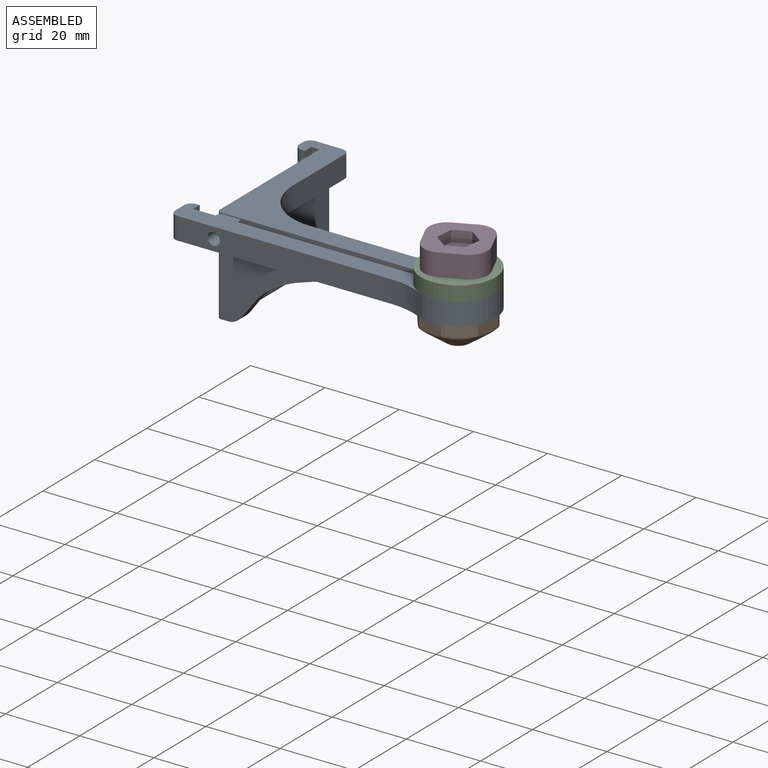
[diagram: assembled view]
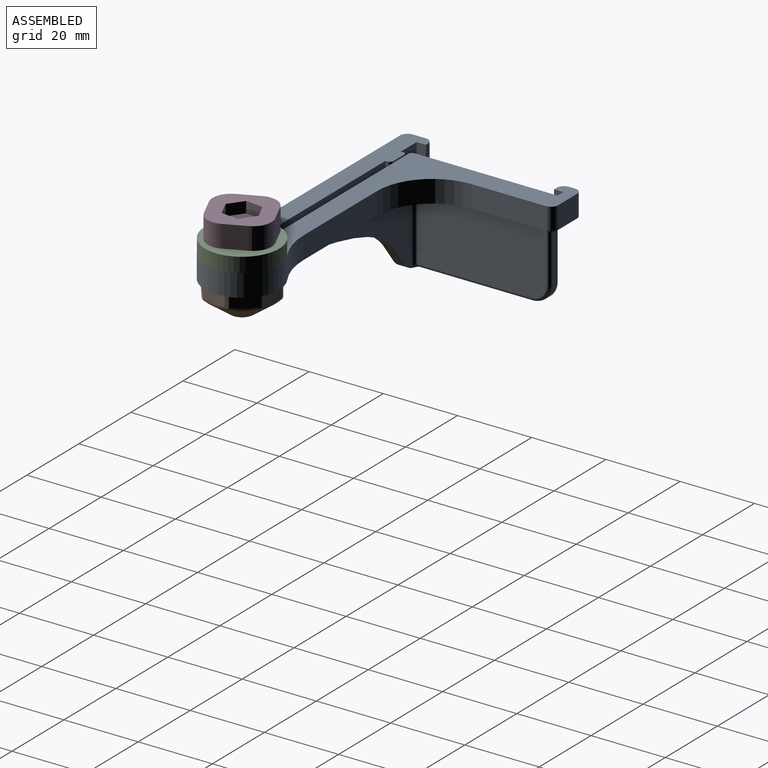
[diagram: assembled view, second angle]
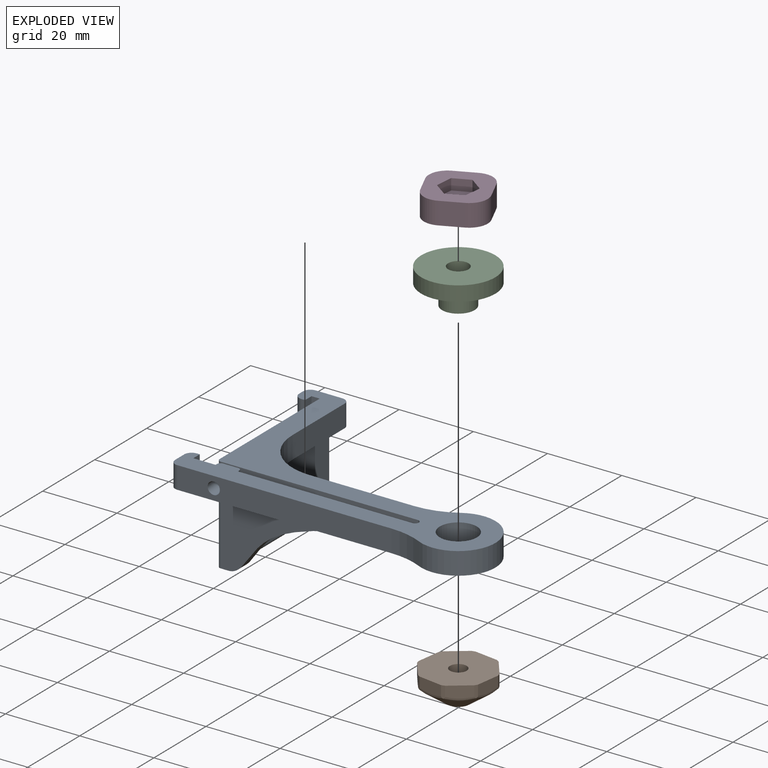
[diagram: exploded view]
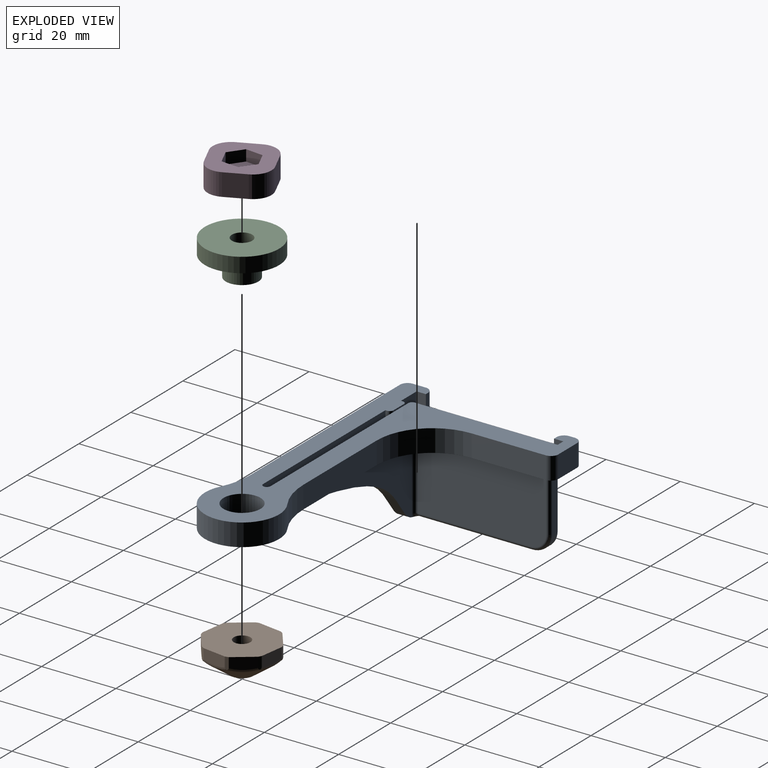
[diagram: exploded view, second angle]
ASSEMBLY  parts=4 mates=4
PART A: 53 faces, bbox 82.9x52.6x28 mm
  f0: plane 82.8x52.5mm, normal (0,0,-1), area 812.4mm2, adj f2,f3,f5,f6,f7,f8,f9,f10
  f1: plane 34.5x18mm, normal (1,0,0), area 617.6mm2, adj f39,f40,f41,f43,f46
  f2: plane 6x2.2mm, normal (0,-1,0), area 13.2mm2, adj f0,f3,f32,f33
  f3: plane 39.5x26mm, normal (-1,0,0), area 995.8mm2, adj f0,f2,f33,f34,f35,f38,f48,f49
  f4: plane 53.05x26mm, normal (0,-1,0), area 642.9mm2, adj f5,f33,f35,f36,f49,f51
  f5: cylinder r=1mm len=6mm, axis (0,0,-1), area 18.8mm2, adj f0,f4,f6,f33
  f6: plane 47.05x6mm, normal (0,1,0), area 282.3mm2, adj f0,f5,f7,f33
  f7: plane 6x0.5mm, normal (1,0,0), area 3mm2, adj f0,f6,f8,f33
  f8: cylinder r=1mm len=6mm, axis (0,0,-1), area 9.4mm2, adj f0,f7,f9,f33
  f9: plane 6x4mm, normal (0,1,0), area 15.4mm2, adj f0,f8,f10,f33,f50
  f10: cylinder r=1mm len=6mm, axis (0,0,-1), area 9.4mm2, adj f0,f9,f11,f33
  f11: plane 6x0.5mm, normal (-1,0,0), area 3mm2, adj f0,f10,f12,f33
  f12: plane 6x6mm, normal (0,1,0), area 36mm2, adj f0,f11,f13,f33
  f13: plane 6x2.5mm, normal (1,0,0), area 15mm2, adj f0,f12,f14,f33
  f14: plane 6x0.8mm, normal (0,1,0), area 4.8mm2, adj f0,f13,f15,f33
  f15: cylinder r=2mm len=6mm, axis (0,0,-1), area 18.8mm2, adj f0,f14,f16,f33
  f16: plane 6x3.5mm, normal (-1,0,0), area 21mm2, adj f0,f15,f17,f33
  f17: cylinder r=2mm len=6mm, axis (0,0,-1), area 18.8mm2, adj f0,f16,f18,f33
  f18: plane 57.72x6mm, normal (0,-1,0), area 337.8mm2, adj f0,f17,f19,f33,f50
  f19: cylinder r=20mm len=8.72mm, axis (0,0,-1), area 54.1mm2, adj f0,f18,f20,f33
  f20: cylinder r=10mm len=20mm, axis (0,0,-1), area 248.8mm2, adj f0,f19,f21,f33
  f21: cylinder r=20mm len=10.54mm, axis (0,0,-1), area 66.6mm2, adj f0,f20,f22,f33
  f22: plane 28.2x6mm, normal (0,1,0), area 169.2mm2, adj f0,f21,f23,f33
  f23: cylinder r=15mm len=15mm, axis (0,0,-1), area 141.4mm2, adj f0,f22,f24,f33
  f24: plane 20x6mm, normal (1,0,0), area 120mm2, adj f0,f23,f25,f33
  f25: cylinder r=2mm len=6mm, axis (0,0,-1), area 18.8mm2, adj f0,f24,f26,f33
  f26: plane 7.2x6mm, normal (0,1,0), area 43.2mm2, adj f0,f25,f27,f33
  f27: cylinder r=2mm len=6mm, axis (0,0,-1), area 18.8mm2, adj f0,f26,f28,f33
  f28: plane 6x1.5mm, normal (-1,0,0), area 9mm2, adj f0,f27,f29,f33
  f29: cylinder r=2mm len=6mm, axis (0,0,-1), area 18.8mm2, adj f0,f28,f30,f33
  f30: plane 6x1mm, normal (0,-1,0), area 6mm2, adj f0,f29,f32,f33
  f31: cylinder r=5mm len=10mm, axis (0,0,-1), area 188.5mm2, adj f0,f33
  f32: plane 6x2.5mm, normal (1,0,0), area 15mm2, adj f0,f2,f30,f33
  f33: plane 82.8x52.5mm, normal (0,0,1), area 1173.5mm2, adj f2,f3,f4,f5,f6,f7,f8,f9
  f34: plane 14x2mm, normal (0,1,0), area 28mm2, adj f3,f38,f41,f48
  f35: plane 34.61x3.11mm, normal (0,0,-1), area 72.3mm2, adj f3,f4,f36,f38,f39,f42,f49
  f36: extruded ~51.05x20mm, area 175.2mm2, adj f0,f4,f35,f37,f42,f44
  f37: plane 39.85x19.57mm, normal (0,1,0), area 227.2mm2, adj f36,f42,f43,f44
  f38: cylinder r=5mm len=5mm, axis (-1,0,0), area 15.7mm2, adj f3,f34,f35,f40
  f39: cylinder r=1mm len=30.5mm, axis (0,1,0), area 47.9mm2, adj f1,f35,f40,f42
  f40: torus R=4mm, axis (-1,0,0), area 11.4mm2, adj f1,f38,f39,f41
  f41: cylinder r=1mm len=14mm, axis (0,0,1), area 22mm2, adj f1,f34,f40,f47
  f42: torus R=2mm, axis (0,-1,0), area 1.9mm2, adj f35,f36,f37,f39,f43
  f43: cylinder r=1mm len=18mm, axis (0,0,-1), area 28.3mm2, adj f1,f37,f42,f45
  f44: cylinder r=1mm len=50.05mm, axis (-1,0,0), area 69.5mm2, adj f0,f36,f37,f45
  f45: sphere r=1mm, area 1.6mm2, adj f43,f44,f46
  f46: cylinder r=1mm len=34.5mm, axis (0,1,0), area 54.2mm2, adj f0,f1,f45,f47
  f47: torus R=2mm, axis (0,0,1), area 3.4mm2, adj f0,f41,f46,f48
  f48: cylinder r=1mm len=2mm, axis (-1,0,0), area 3.1mm2, adj f0,f3,f34,f47
  f49: cylinder r=1mm len=26mm, axis (0,0,-1), area 40.8mm2, adj f3,f4,f33,f35
  f50: cylinder r=1.65mm len=6.5mm, axis (0,-1,0), area 67.4mm2, adj f9,f18
  f51: cylinder r=1.35mm len=10mm, axis (0,-1,0), area 84.8mm2, adj f4,f52
  f52: plane 2.7x2.7mm, normal (0,-1,0), area 5.7mm2, adj f51
PART B: 28 faces, bbox 19.2x19.2x8.2 mm
  f0: plane 18x18mm, normal (0,0,-1), area 251.8mm2, adj f3,f4,f5,f6,f7,f8,f9,f10
  f1: cone r=10mm half-angle=54.5deg, axis (0,0,-1), area 294.9mm2, adj f2,f20,f21,f22,f23,f24,f25,f26
  f2: plane 6x6mm, normal (0,0,1), area 12.4mm2, adj f1,f3
  f3: cylinder r=2.25mm len=8mm, axis (0,0,-1), area 113.1mm2, adj f0,f2
  f4: plane 4.58x4.58mm, normal (-0.71,-0.71,0), area 19.7mm2, adj f0,f12,f19,f25
  f5: plane 6.48x3.2mm, normal (0,-1,0), area 19.7mm2, adj f0,f12,f13,f23
  f6: plane 4.58x4.58mm, normal (0.71,-0.71,0), area 19.7mm2, adj f0,f13,f14,f21
  f7: plane 6.48x3.2mm, normal (1,0,0), area 19.7mm2, adj f0,f14,f15,f20
  f8: plane 4.58x4.58mm, normal (0.71,0.71,0), area 19.7mm2, adj f0,f15,f16,f22
  f9: plane 6.48x3.2mm, normal (0,1,0), area 19.7mm2, adj f0,f16,f17,f24
  f10: plane 4.58x4.58mm, normal (-0.71,0.71,0), area 19.7mm2, adj f0,f17,f18,f26
  f11: plane 6.48x3.2mm, normal (-1,0,0), area 19.7mm2, adj f0,f18,f19,f27
  f12: plane 3.43x1.06mm, normal (-0.38,-0.92,0), area 2.9mm2, adj f0,f4,f5,f23,f25
  f13: plane 3.43x1.06mm, normal (0.38,-0.92,0), area 2.9mm2, adj f0,f5,f6,f21,f23
  f14: plane 3.43x1.06mm, normal (0.92,-0.38,0), area 2.9mm2, adj f0,f6,f7,f20,f21
  f15: plane 3.43x1.06mm, normal (0.92,0.38,0), area 2.9mm2, adj f0,f7,f8,f20,f22
  f16: plane 3.43x1.06mm, normal (0.38,0.92,0), area 2.9mm2, adj f0,f8,f9,f22,f24
  f17: plane 3.43x1.06mm, normal (-0.38,0.92,0), area 2.9mm2, adj f0,f9,f10,f24,f26
  f18: plane 3.43x1.06mm, normal (-0.92,0.38,0), area 2.9mm2, adj f0,f10,f11,f26,f27
  f19: plane 3.43x1.06mm, normal (-0.92,-0.38,0), area 2.9mm2, adj f0,f4,f11,f25,f27
  f20: bspline ~10.55x1.94mm, area 6.9mm2, adj f1,f7,f14,f15,f21,f22
  f21: bspline ~6.69x6.68mm, area 6.9mm2, adj f1,f6,f13,f14,f20,f23
  f22: bspline ~6.69x6.68mm, area 6.9mm2, adj f1,f8,f15,f16,f20,f24
  f23: bspline ~10.55x1.94mm, area 6.9mm2, adj f1,f5,f12,f13,f21,f25
  f24: bspline ~10.55x1.94mm, area 6.9mm2, adj f1,f9,f16,f17,f22,f26
  f25: bspline ~6.69x6.68mm, area 6.9mm2, adj f1,f4,f12,f19,f23,f27
  f26: bspline ~6.69x6.68mm, area 6.9mm2, adj f1,f10,f17,f18,f24,f27
  f27: bspline ~10.55x1.94mm, area 6.9mm2, adj f1,f11,f18,f19,f25,f26
PART C: 6 faces, bbox 20x20x9.5 mm
  f0: cylinder r=10mm len=20mm, axis (0,0,-1), area 251.3mm2, adj f1,f2
  f1: plane 20x20mm, normal (0,0,1), area 290.4mm2, adj f0,f5
  f2: plane 20x20mm, normal (0,0,-1), area 253.3mm2, adj f0,f3
  f3: cylinder r=4.4mm len=8.8mm, axis (0,0,1), area 152.1mm2, adj f2,f4
  f4: plane 8.8x8.8mm, normal (0,0,-1), area 37.1mm2, adj f3,f5
  f5: cylinder r=2.75mm len=9.5mm, axis (0,0,1), area 164.1mm2, adj f1,f4
PART D: 31 faces, bbox 16x16x6.6 mm
  f0: cylinder r=2.65mm len=5.3mm, axis (0,0,1), area 40mm2, adj f5,f30
  f1: plane 6x6mm, normal (0,-1,0), area 36mm2, adj f5,f6,f19,f22
  f2: plane 6x6mm, normal (1,0,0), area 36mm2, adj f5,f6,f19,f20
  f3: plane 6x6mm, normal (0,1,0), area 36mm2, adj f5,f6,f20,f21
  f4: plane 6x6mm, normal (-1,0,0), area 36mm2, adj f5,f6,f21,f22
  f5: plane 16x16mm, normal (0,0,1), area 201.9mm2, adj f0,f1,f2,f3,f4,f7,f9,f11
  f6: plane 16x16mm, normal (0,0,-1), area 174.9mm2, adj f1,f2,f3,f4,f19,f20,f21,f22
  f7: cylinder r=0.75mm len=1.5mm, axis (0,0,-1), area 2.8mm2, adj f5,f8
  f8: plane 1.5x1.5mm, normal (0,0,1), area 1.8mm2, adj f7
  f9: cylinder r=0.75mm len=1.5mm, axis (0,0,-1), area 2.8mm2, adj f5,f10
  f10: plane 1.5x1.5mm, normal (0,0,1), area 1.8mm2, adj f9
  f11: cylinder r=0.75mm len=1.5mm, axis (0,0,-1), area 2.8mm2, adj f5,f12
  f12: plane 1.5x1.5mm, normal (0,0,1), area 1.8mm2, adj f11
  f13: cylinder r=0.75mm len=1.5mm, axis (0,0,-1), area 2.8mm2, adj f5,f14
  f14: plane 1.5x1.5mm, normal (0,0,1), area 1.8mm2, adj f13
  f15: cylinder r=0.75mm len=1.5mm, axis (0,0,-1), area 2.8mm2, adj f5,f16
  f16: plane 1.5x1.5mm, normal (0,0,1), area 1.8mm2, adj f15
  f17: cylinder r=0.75mm len=1.5mm, axis (0,0,-1), area 2.8mm2, adj f5,f18
  f18: plane 1.5x1.5mm, normal (0,0,1), area 1.8mm2, adj f17
  f19: cylinder r=5mm len=6mm, axis (0,0,1), area 47.1mm2, adj f1,f2,f5,f6
  f20: cylinder r=5mm len=6mm, axis (0,0,-1), area 47.1mm2, adj f2,f3,f5,f6
  f21: cylinder r=5mm len=6mm, axis (0,0,1), area 47.1mm2, adj f3,f4,f5,f6
  f22: cylinder r=5mm len=6mm, axis (0,0,-1), area 47.1mm2, adj f1,f4,f5,f6
  f23: plane 4.79x3mm, normal (-1,0,0), area 14.4mm2, adj f6,f24,f28,f29
  f24: plane 4.15x3mm, normal (-0.5,0.87,0), area 14.4mm2, adj f6,f23,f25,f29
  f25: plane 4.15x3mm, normal (0.5,0.87,0), area 14.4mm2, adj f6,f24,f26,f29
  f26: plane 4.79x3mm, normal (1,0,0), area 14.4mm2, adj f6,f25,f27,f29
  f27: plane 4.15x3mm, normal (0.5,-0.87,0), area 14.4mm2, adj f6,f26,f28,f29
  f28: plane 4.15x3mm, normal (-0.5,-0.87,0), area 14.4mm2, adj f6,f23,f27,f29
  f29: plane 9.58x8.3mm, normal (0,0,-1), area 59.7mm2, adj f23,f24,f25,f26,f27,f28
  f30: plane 5.3x5.3mm, normal (0,0,1), area 22.1mm2, adj f0
PLACE A rot(axis=(1,0,0),0deg) t=(0,0,0)mm
PLACE B rot(axis=(-0.07,-1,0),180deg) t=(0,0,0)mm
PLACE C rot(axis=(0,0,1),114.3deg) t=(0,0,6)mm
PLACE D rot(axis=(0.84,-0.54,0),180deg) t=(0,0,16.75)mm
MATE fastened C.f0 <-> D.f0  axis (0,0,1) through (0,0,10)mm
MATE cylindrical C.f5 <-> B.f1  axis (0,0,-1) through (0,0,0.5)mm
MATE planar B.f1 <-> A.f31  axis (0,0,1) through (0,0,0)mm
MATE revolute C.f0 <-> A.f20  axis (0,0,-1) through (0,0,6)mm
